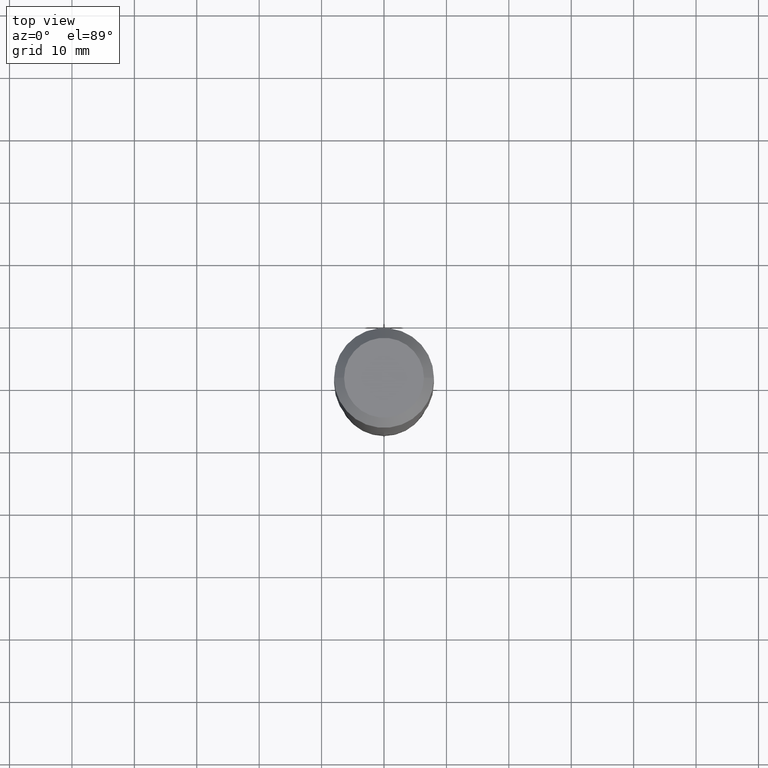
[diagram: clean part render]
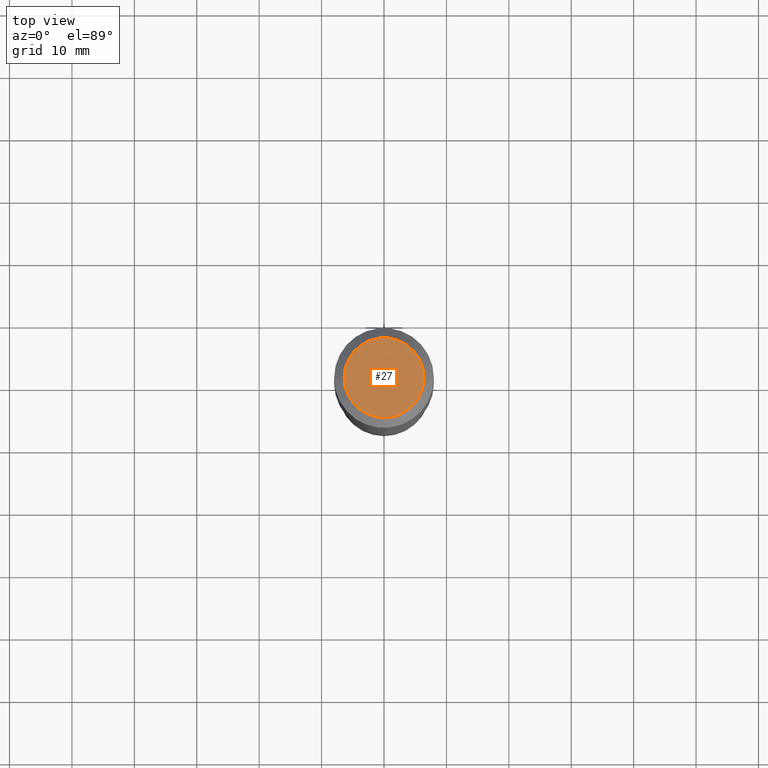
[diagram: same view with one face highlighted and labeled with its STEP entity id]
A machine part, top view. The second image highlights one B-rep face of the part: STEP entity #27.
In plain terms, the highlighted planar face has unit normal (0, -0, -1).
Its self-contained STEP definition (entity closure, byte-faithful):
#7 = CARTESIAN_POINT ( 'NONE',  ( -4.713871149261284790E-47, 6.730158695841843144E-33, 1.927594061857935750E-18 ) ) ;
#11 = ORIENTED_EDGE ( 'NONE', *, *, #148, .T. ) ;
#27 = ADVANCED_FACE ( 'NONE', ( #263 ), #43, .F. ) ;
#35 = DIRECTION ( 'NONE',  ( -2.445468806185136597E-29, 3.491481338843145583E-15, 1.000000000000000000 ) ) ;
#43 = PLANE ( 'NONE',  #279 ) ;
#58 = EDGE_LOOP ( 'NONE', ( #188, #11 ) ) ;
#78 = CARTESIAN_POINT ( 'NONE',  ( -9.427742298522569579E-47, 1.346031739168368629E-32, 3.855188123715871501E-18 ) ) ;
#94 = VERTEX_POINT ( 'NONE', #408 ) ;
#95 = VERTEX_POINT ( 'NONE', #261 ) ;
#105 = CIRCLE ( 'NONE', #297, 0.2519600000000000173 ) ;
#106 = EDGE_CURVE ( 'NONE', #95, #94, #402, .T. ) ;
#120 = DIRECTION ( 'NONE',  ( 1.000000000000000000, -6.982962677686266711E-15, 4.876115136096691995E-29 ) ) ;
#148 = EDGE_CURVE ( 'NONE', #94, #95, #105, .T. ) ;
#188 = ORIENTED_EDGE ( 'NONE', *, *, #106, .T. ) ;
#222 = DIRECTION ( 'NONE',  ( 2.438088387897960049E-29, -3.491481338843145188E-15, -1.000000000000000000 ) ) ;
#257 = DIRECTION ( 'NONE',  ( 1.000000000000000000, -6.982962677686266711E-15, 4.876115136096691995E-29 ) ) ;
#260 = DIRECTION ( 'NONE',  ( -1.000000000000000000, 6.982962677686265922E-15, -4.876176775795935793E-29 ) ) ;
#261 = CARTESIAN_POINT ( 'NONE',  ( -0.2519600000000000173, 1.869391481036695286E-15, 3.855188123703182704E-18 ) ) ;
#263 = FACE_OUTER_BOUND ( 'NONE', #58, .T. ) ;
#279 = AXIS2_PLACEMENT_3D ( 'NONE', #7, #222, #260 ) ;
#297 = AXIS2_PLACEMENT_3D ( 'NONE', #78, #377, #257 ) ;
#344 = CARTESIAN_POINT ( 'NONE',  ( -9.427742298522569579E-47, 1.346031739168368629E-32, 3.855188123715871501E-18 ) ) ;
#377 = DIRECTION ( 'NONE',  ( -2.445468806185136597E-29, 3.491481338843145583E-15, 1.000000000000000000 ) ) ;
#402 = CIRCLE ( 'NONE', #465, 0.2519600000000000173 ) ;
#408 = CARTESIAN_POINT ( 'NONE',  ( 0.2519600000000000173, -2.054606664725195058E-15, 3.855188123729206640E-18 ) ) ;
#465 = AXIS2_PLACEMENT_3D ( 'NONE', #344, #35, #120 ) ;